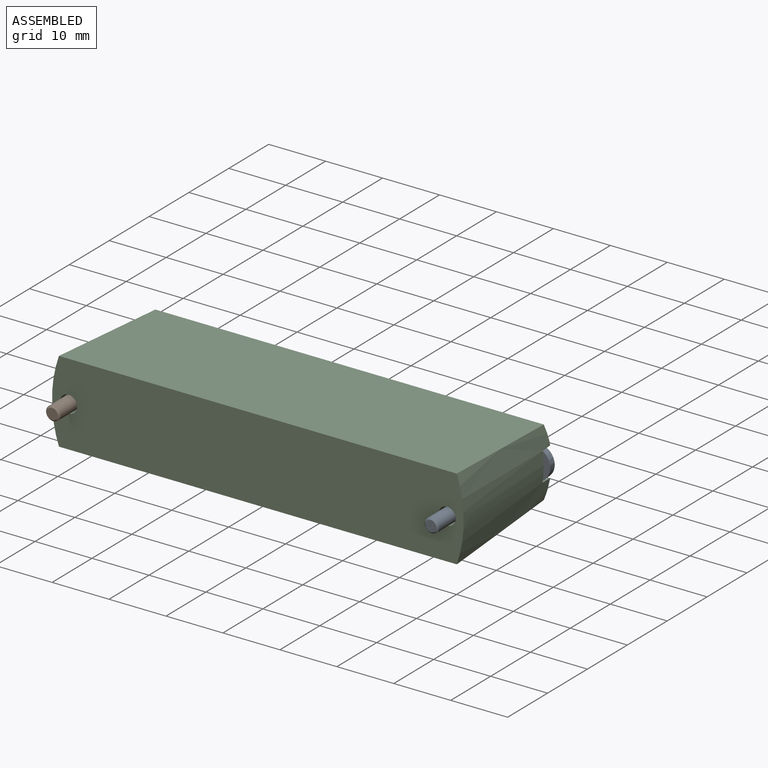
[diagram: assembled view]
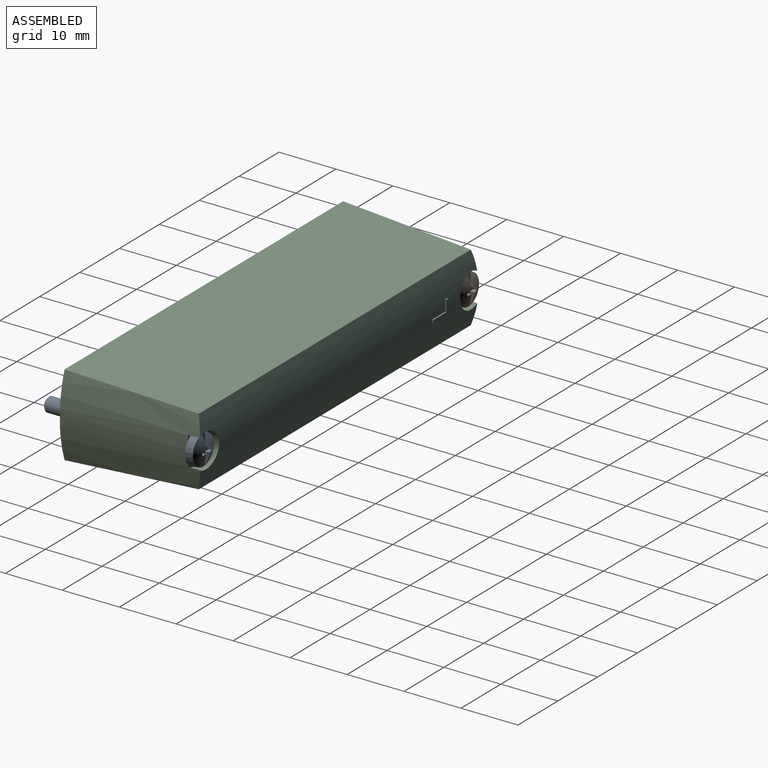
[diagram: assembled view, second angle]
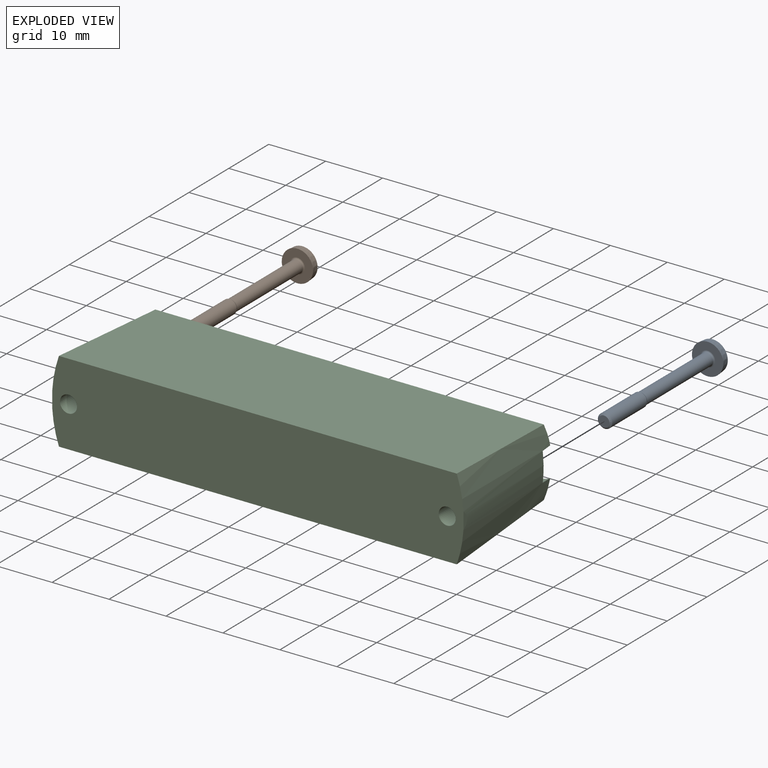
[diagram: exploded view]
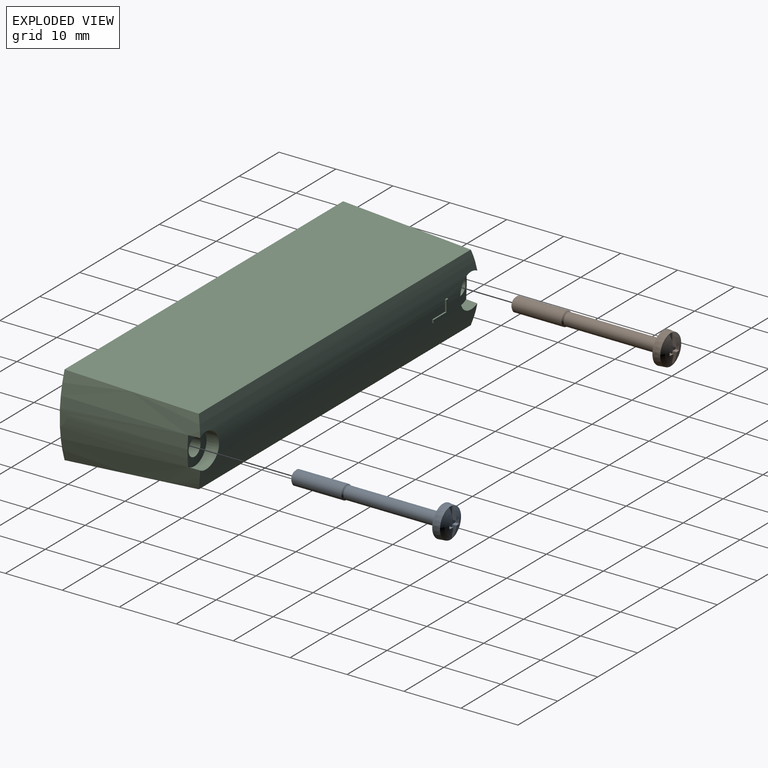
[diagram: exploded view, second angle]
ASSEMBLY  parts=3 mates=2
PART A: 21 faces, bbox 28.1x5.5x5.5 mm
  f0: plane 2.24x0.77mm, normal (0,0,1), area 1.1mm2, adj f2,f3,f20
  f1: plane 2.24x0.77mm, normal (0,0,-1), area 1.1mm2, adj f4,f13,f20
  f2: plane 0.81x0.77mm, normal (0,-1,0), area 0.6mm2, adj f0,f3,f19,f20
  f3: sphere r=4.74mm, area 9.1mm2, adj f0,f2,f5,f17,f18,f19
  f4: sphere r=4.74mm, area 9.1mm2, adj f1,f5,f13,f14,f15,f16
  f5: cone r=2.64mm half-angle=5deg, axis (1,0,0), area 22.1mm2, adj f3,f4,f6,f20
  f6: plane 5.5x5.5mm, normal (1,0,0), area 18mm2, adj f5,f7
  f7: torus R=1.35mm, axis (1,0,0), area 2.9mm2, adj f6,f8
  f8: cylinder r=1.1mm len=16.49mm, axis (-1,0,0), area 114mm2, adj f7,f9
  f9: cone r=1.1mm half-angle=30deg, axis (1,0,0), area 2.2mm2, adj f8,f10
  f10: cylinder r=1.25mm len=8.72mm, axis (-1,0,0), area 68.5mm2, adj f9,f11
  f11: cone r=1.25mm half-angle=45deg, axis (-1,0,0), area 2.7mm2, adj f10,f12
  f12: plane 1.95x1.95mm, normal (1,0,0), area 3mm2, adj f11
  f13: plane 0.81x0.77mm, normal (0,-1,0), area 0.6mm2, adj f1,f4,f14,f20
  f14: plane 0.74x0.65mm, normal (0,0,-1), area 0.5mm2, adj f4,f13,f15,f20
  f15: plane 0.81x0.77mm, normal (0,1,0), area 0.6mm2, adj f4,f14,f16,f20
  f16: plane 2.24x0.77mm, normal (0,0,-1), area 1.1mm2, adj f4,f15,f20
  f17: plane 2.24x0.77mm, normal (0,0,1), area 1.1mm2, adj f3,f18,f20
  f18: plane 0.81x0.77mm, normal (0,1,0), area 0.6mm2, adj f3,f17,f19,f20
  f19: plane 0.74x0.65mm, normal (0,0,1), area 0.5mm2, adj f2,f3,f18,f20
  f20: plane 5.27x2.4mm, normal (-1,0,0), area 5.3mm2, adj f0,f1,f2,f5,f13,f14,f15,f16
PART B: same geometry as A
PART C: 21 faces, bbox 72.4x24.3x14.5 mm
  f0: cylinder r=3mm len=6mm, axis (0,1,0), area 26mm2, adj f1,f6,f12
  f1: cylinder r=21.9mm len=23.76mm, axis (0.05,1,0), area 302.4mm2, adj f0,f3,f4,f5,f6,f8,f12
  f2: cylinder r=3mm len=6mm, axis (0,1,0), area 26mm2, adj f6,f7,f10
  f3: plane 72.22x14.42mm, normal (0,-1,0), area 1015.2mm2, adj f1,f4,f5,f7,f8,f9,f11,f13
  f4: plane 2.94x0.95mm, normal (-1,0,0), area 1.9mm2, adj f1,f3
  f5: plane 69.97x23.11mm, normal (0,0.05,1), area 1590.4mm2, adj f1,f3,f6,f7
  f6: cylinder r=21.6mm len=69.51mm, axis (1,0,0), area 791.5mm2, adj f0,f1,f2,f5,f7,f8,f14,f15
  f7: cylinder r=21.9mm len=23.76mm, axis (-0.05,1,0), area 302.4mm2, adj f2,f3,f5,f6,f8,f10,f11
  f8: plane 69.97x23.11mm, normal (0,0.05,-1), area 1590.4mm2, adj f1,f3,f6,f7
  f9: cylinder r=1.5mm len=21.65mm, axis (0,1,0), area 204mm2, adj f3,f10
  f10: plane 6.02x4.78mm, normal (0,1,0), area 16.8mm2, adj f2,f7,f9
  f11: plane 2.94x0.95mm, normal (1,0,0), area 1.9mm2, adj f3,f7
  f12: plane 6.02x4.78mm, normal (0,1,0), area 16.8mm2, adj f0,f1,f13
  f13: cylinder r=1.5mm len=21.65mm, axis (0,1,0), area 204mm2, adj f3,f12
  f14: plane 3.75x0.29mm, normal (0,0,1), area 1.1mm2, adj f6,f17,f18,f20
  f15: plane 0.53x0.29mm, normal (0,0,-1), area 0.1mm2, adj f6,f18,f19,f20
  f16: plane 3.23x0.26mm, normal (0,0,-1), area 0.8mm2, adj f6,f17,f19,f20
  f17: plane 0.53x0.29mm, normal (-1,0,0), area 0.1mm2, adj f6,f14,f16,f20
  f18: plane 2.48x0.29mm, normal (1,0,0), area 0.6mm2, adj f6,f14,f15,f20
  f19: plane 1.95x0.29mm, normal (-1,0,0), area 0.5mm2, adj f6,f15,f16,f20
  f20: plane 3.75x2.48mm, normal (0,1,0), area 3mm2, adj f14,f15,f16,f17,f18,f19
PLACE A rot(axis=(-0.58,0.58,-0.58),120deg) t=(33.95,28.23,28.96)mm
PLACE B rot(axis=(-0.58,0.58,-0.58),120deg) t=(-32.55,28.23,28.96)mm
PLACE C rot(axis=(0,1,0),180deg) t=(0.7,6.33,28.96)mm
MATE fastened A.f5 <-> C.f0  axis (0,1,0) through (33.95,27.98,28.96)mm
MATE fastened B.f5 <-> C.f2  axis (0,1,0) through (-32.55,27.98,28.96)mm
